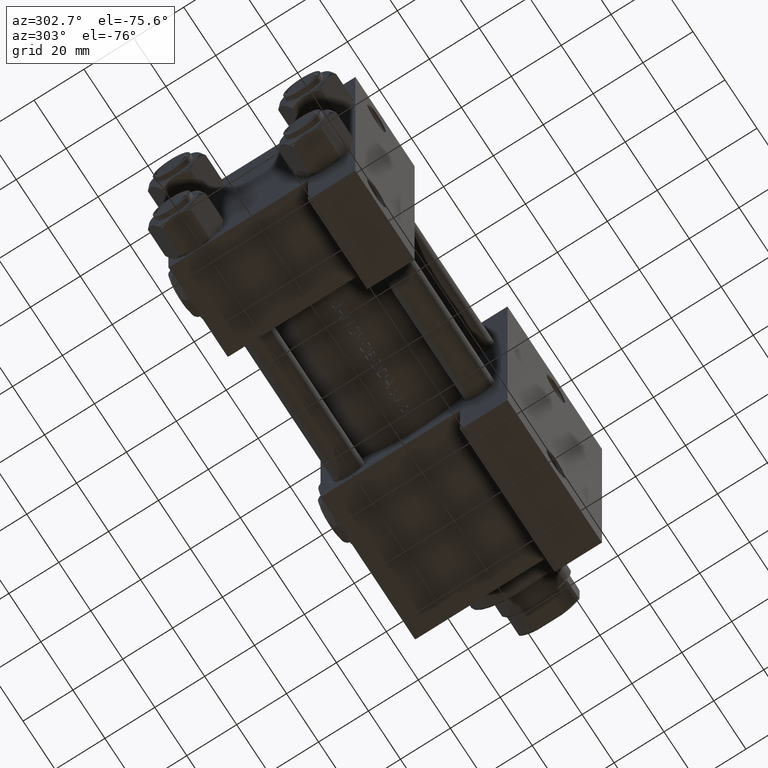
[diagram: clean part render]
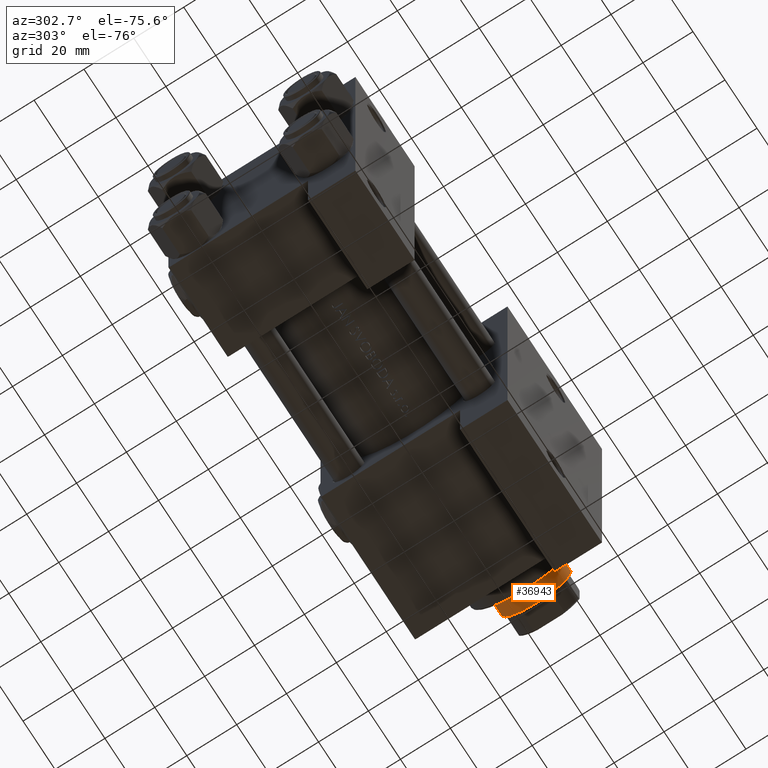
[diagram: same view with one face highlighted and labeled with its STEP entity id]
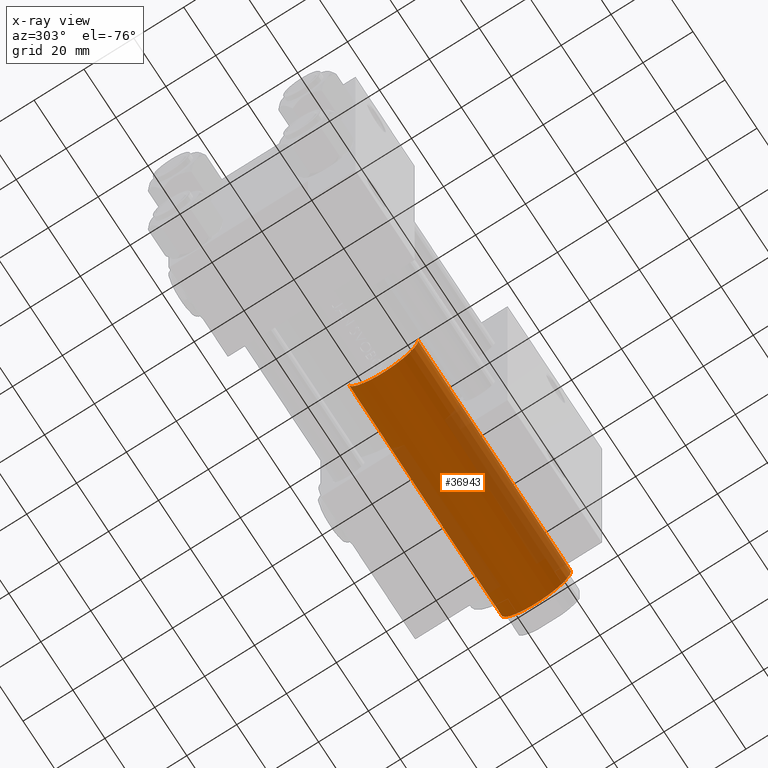
[diagram: x-ray of the same camera — body ghosted, the highlighted face saturated]
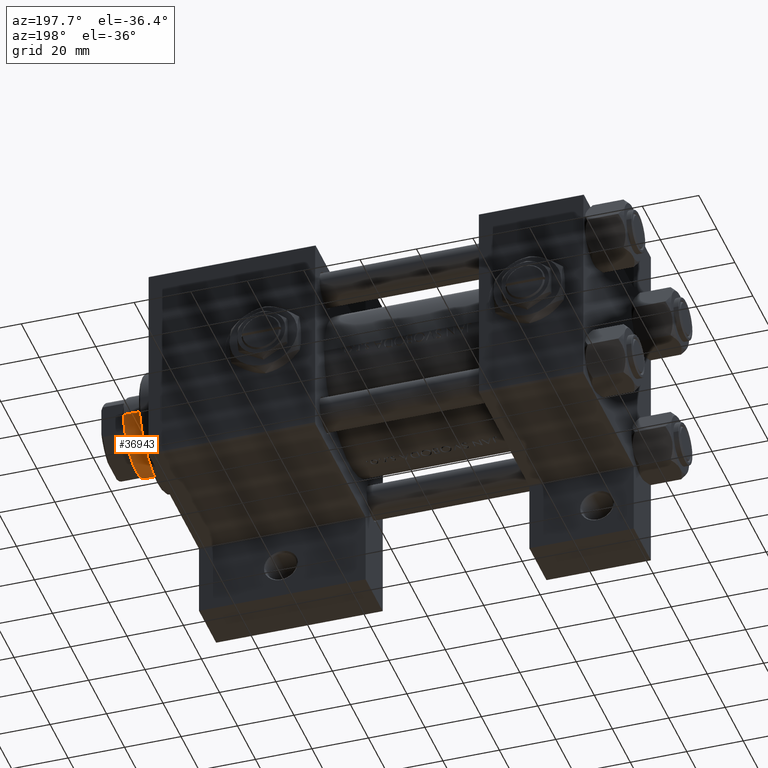
[diagram: same view with one face highlighted and labeled with its STEP entity id]
A machine part, auxiliary view. The second image highlights one B-rep face of the part: STEP entity #36943.
The next image is the same camera in x-ray: the body ghosted, the highlighted face saturated — about 30% of this face is hidden behind the body in this view.
A second angle (auxiliary view) of the same face is appended — the face is thin or edge-on in the first view.
In plain terms, the highlighted cylindrical surface (partial cylindrical patch) has radius 14 mm, axis along (-1, 0, 0).
Its self-contained STEP definition (entity closure, byte-faithful):
#663 = EDGE_LOOP ( 'NONE', ( #29083, #4919, #935, #15078 ) ) ;
#935 = ORIENTED_EDGE ( 'NONE', *, *, #26553, .T. ) ;
#4919 = ORIENTED_EDGE ( 'NONE', *, *, #18788, .T. ) ;
#5070 = LINE ( 'NONE', #9049, #23846 ) ;
#5215 = DIRECTION ( 'NONE',  ( -1.000000000000000000, 0.000000000000000000, 0.000000000000000000 ) ) ;
#6457 = AXIS2_PLACEMENT_3D ( 'NONE', #28202, #25223, #36613 ) ;
#6580 = CARTESIAN_POINT ( 'NONE',  ( 0.000000000000000000, 0.000000000000000000, 133.5000000000000284 ) ) ;
#8792 = EDGE_CURVE ( 'NONE', #30517, #14436, #5070, .T. ) ;
#8952 = DIRECTION ( 'NONE',  ( -0.000000000000000000, -0.000000000000000000, -1.000000000000000000 ) ) ;
#9049 = CARTESIAN_POINT ( 'NONE',  ( -14.00000000000000178, 0.000000000000000000, 134.0000000000000000 ) ) ;
#10550 = DIRECTION ( 'NONE',  ( 1.000000000000000000, 0.000000000000000000, 0.000000000000000000 ) ) ;
#11492 = DIRECTION ( 'NONE',  ( -0.000000000000000000, -0.000000000000000000, -1.000000000000000000 ) ) ;
#12234 = AXIS2_PLACEMENT_3D ( 'NONE', #20586, #8952, #5215 ) ;
#14436 = VERTEX_POINT ( 'NONE', #38988 ) ;
#15078 = ORIENTED_EDGE ( 'NONE', *, *, #8792, .F. ) ;
#16386 = FACE_OUTER_BOUND ( 'NONE', #663, .T. ) ;
#16788 = AXIS2_PLACEMENT_3D ( 'NONE', #6580, #21689, #10550 ) ;
#18335 = CIRCLE ( 'NONE', #6457, 14.00000000000000178 ) ;
#18788 = EDGE_CURVE ( 'NONE', #41803, #45897, #23130, .T. ) ;
#20586 = CARTESIAN_POINT ( 'NONE',  ( 0.000000000000000000, 0.000000000000000000, 134.0000000000000000 ) ) ;
#21689 = DIRECTION ( 'NONE',  ( 0.000000000000000000, 0.000000000000000000, -1.000000000000000000 ) ) ;
#23130 = LINE ( 'NONE', #30818, #44973 ) ;
#23846 = VECTOR ( 'NONE', #24155, 1000.000000000000000 ) ;
#24155 = DIRECTION ( 'NONE',  ( -0.000000000000000000, -0.000000000000000000, -1.000000000000000000 ) ) ;
#25223 = DIRECTION ( 'NONE',  ( 0.000000000000000000, 0.000000000000000000, 1.000000000000000000 ) ) ;
#26553 = EDGE_CURVE ( 'NONE', #45897, #14436, #18335, .T. ) ;
#26928 = CARTESIAN_POINT ( 'NONE',  ( 14.00000000000000178, 1.714505518806294835E-15, 38.00000000000000000 ) ) ;
#28003 = EDGE_CURVE ( 'NONE', #30517, #41803, #48437, .T. ) ;
#28202 = CARTESIAN_POINT ( 'NONE',  ( 0.000000000000000000, 0.000000000000000000, 38.00000000000000000 ) ) ;
#29083 = ORIENTED_EDGE ( 'NONE', *, *, #28003, .T. ) ;
#30517 = VERTEX_POINT ( 'NONE', #41307 ) ;
#30818 = CARTESIAN_POINT ( 'NONE',  ( 14.00000000000000178, 1.714505518806294835E-15, 134.0000000000000000 ) ) ;
#31499 = CYLINDRICAL_SURFACE ( 'NONE', #12234, 14.00000000000000178 ) ;
#36613 = DIRECTION ( 'NONE',  ( 1.000000000000000000, 0.000000000000000000, 0.000000000000000000 ) ) ;
#36943 = ADVANCED_FACE ( 'NONE', ( #16386 ), #31499, .T. ) ;
#38988 = CARTESIAN_POINT ( 'NONE',  ( -14.00000000000000178, 0.000000000000000000, 38.00000000000000000 ) ) ;
#40094 = CARTESIAN_POINT ( 'NONE',  ( 14.00000000000000178, 1.714505518806294835E-15, 133.5000000000000284 ) ) ;
#41307 = CARTESIAN_POINT ( 'NONE',  ( -14.00000000000000178, 0.000000000000000000, 133.5000000000000284 ) ) ;
#41803 = VERTEX_POINT ( 'NONE', #40094 ) ;
#44973 = VECTOR ( 'NONE', #11492, 1000.000000000000000 ) ;
#45897 = VERTEX_POINT ( 'NONE', #26928 ) ;
#48437 = CIRCLE ( 'NONE', #16788, 14.00000000000000178 ) ;